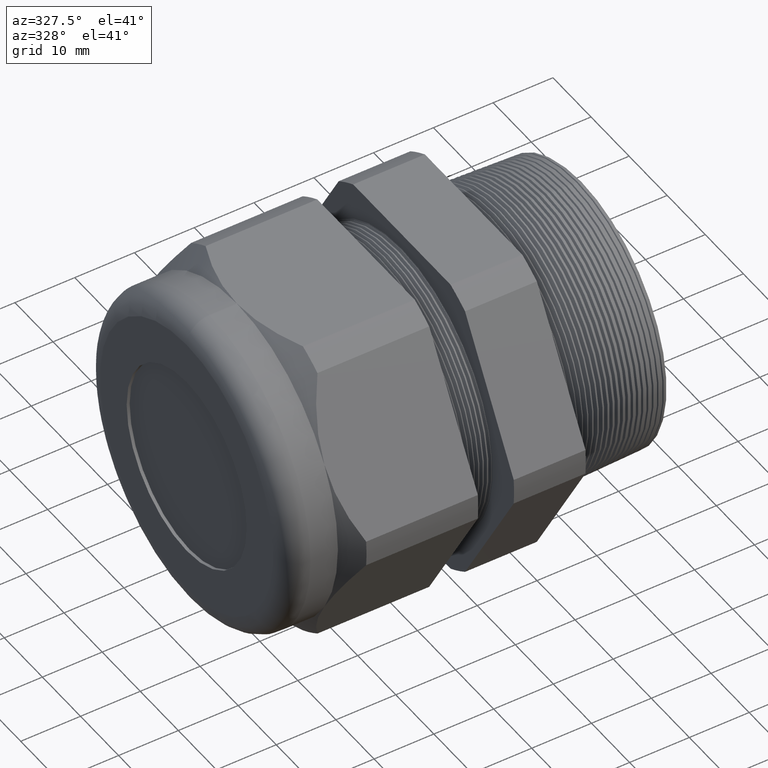
[diagram: clean part render]
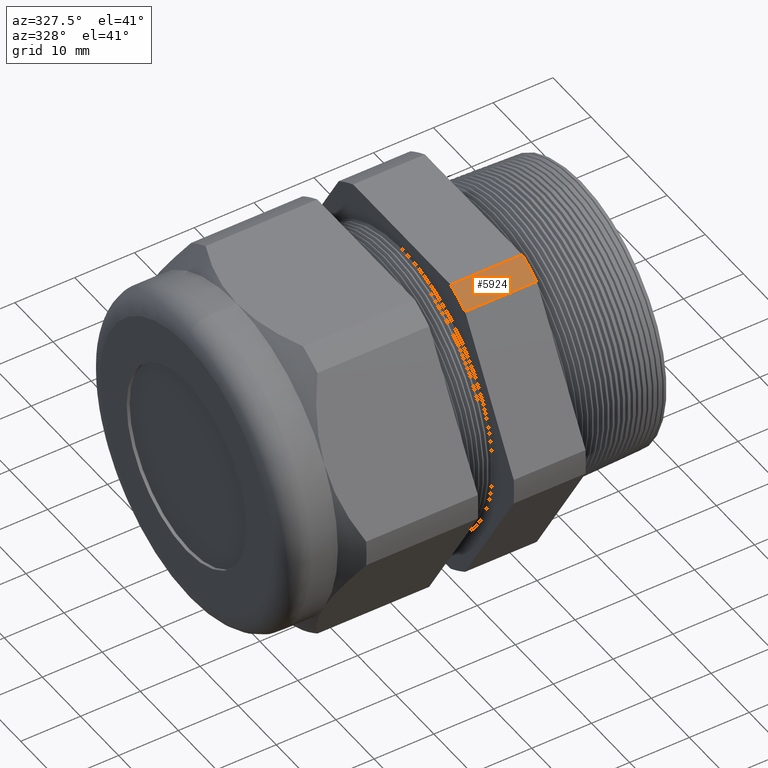
[diagram: same view with one face highlighted and labeled with its STEP entity id]
A machine part, auxiliary view. The second image highlights one B-rep face of the part: STEP entity #5924.
In plain terms, the highlighted cylindrical surface (partial cylindrical patch) has radius 29.4627 mm, axis along (-1, 0, 0).
Its self-contained STEP definition (entity closure, byte-faithful):
#132 = VERTEX_POINT ( 'NONE', #461 ) ;
#134 = EDGE_CURVE ( 'NONE', #132, #135, #460, .T. ) ;
#135 = VERTEX_POINT ( 'NONE', #455 ) ;
#455 = CARTESIAN_POINT ( 'NONE',  ( -0.7824400000000001400, -0.5034471198646400800, 1.044999999999999300 ) ) ;
#456 = DIRECTION ( 'NONE',  ( 0.0000000000000000000, 0.0000000000000000000, 1.000000000000000000 ) ) ;
#457 = DIRECTION ( 'NONE',  ( -1.000000000000000000, 0.0000000000000000000, 0.0000000000000000000 ) ) ;
#458 = CARTESIAN_POINT ( 'NONE',  ( -0.7824400000000001400, 0.0000000000000000000, 0.0000000000000000000 ) ) ;
#459 = AXIS2_PLACEMENT_3D ( 'NONE', #458, #457, #456 ) ;
#460 = CIRCLE ( 'NONE', #459, 1.159950000000000000 ) ;
#461 = CARTESIAN_POINT ( 'NONE',  ( -0.7824400000000001400, -0.6532729870224188700, 0.9584979952648864400 ) ) ;
#1823 = CARTESIAN_POINT ( 'NONE',  ( -0.3100000000000000000, -0.5034471198646400800, 1.044999999999999300 ) ) ;
#1986 = DIRECTION ( 'NONE',  ( 1.000000000000000000, 0.0000000000000000000, 0.0000000000000000000 ) ) ;
#1987 = CARTESIAN_POINT ( 'NONE',  ( -0.3100000000000000000, 0.0000000000000000000, 0.0000000000000000000 ) ) ;
#1988 = AXIS2_PLACEMENT_3D ( 'NONE', #1987, #1986, #2047 ) ;
#1993 = CIRCLE ( 'NONE', #1988, 1.159950000000000000 ) ;
#2047 = DIRECTION ( 'NONE',  ( 0.0000000000000000000, 0.0000000000000000000, -1.000000000000000000 ) ) ;
#3382 = CARTESIAN_POINT ( 'NONE',  ( -0.3100000000000000000, -0.6532729870224188700, 0.9584979952648864400 ) ) ;
#3400 = DIRECTION ( 'NONE',  ( -1.000000000000000000, 0.0000000000000000000, 0.0000000000000000000 ) ) ;
#3401 = VECTOR ( 'NONE', #3400, 39.37007874015748100 ) ;
#3402 = CARTESIAN_POINT ( 'NONE',  ( 0.4000000000000000800, -0.6532729870224188700, 0.9584979952648864400 ) ) ;
#3403 = LINE ( 'NONE', #3402, #3401 ) ;
#3883 = DIRECTION ( 'NONE',  ( -1.000000000000000000, 0.0000000000000000000, 0.0000000000000000000 ) ) ;
#3884 = VECTOR ( 'NONE', #3883, 39.37007874015748100 ) ;
#3885 = CARTESIAN_POINT ( 'NONE',  ( 0.4000000000000000800, -0.5034471198646400800, 1.044999999999999300 ) ) ;
#3886 = DIRECTION ( 'NONE',  ( 0.0000000000000000000, 0.0000000000000000000, 1.000000000000000000 ) ) ;
#3887 = DIRECTION ( 'NONE',  ( -1.000000000000000000, 0.0000000000000000000, 0.0000000000000000000 ) ) ;
#3888 = CARTESIAN_POINT ( 'NONE',  ( 0.4000000000000000800, 0.0000000000000000000, 0.0000000000000000000 ) ) ;
#3889 = AXIS2_PLACEMENT_3D ( 'NONE', #3888, #3887, #3886 ) ;
#3890 = LINE ( 'NONE', #3885, #3884 ) ;
#3891 = CYLINDRICAL_SURFACE ( 'NONE', #3889, 1.159950000000000000 ) ;
#3892 = FACE_OUTER_BOUND ( 'NONE', #5918, .T. ) ;
#4763 = VERTEX_POINT ( 'NONE', #1823 ) ;
#4906 = EDGE_CURVE ( 'NONE', #4763, #5623, #1993, .T. ) ;
#5623 = VERTEX_POINT ( 'NONE', #3382 ) ;
#5645 = ORIENTED_EDGE ( 'NONE', *, *, #5646, .F. ) ;
#5646 = EDGE_CURVE ( 'NONE', #5623, #132, #3403, .T. ) ;
#5648 = ORIENTED_EDGE ( 'NONE', *, *, #4906, .F. ) ;
#5657 = ORIENTED_EDGE ( 'NONE', *, *, #5928, .T. ) ;
#5658 = ORIENTED_EDGE ( 'NONE', *, *, #134, .F. ) ;
#5918 = EDGE_LOOP ( 'NONE', ( #5657, #5658, #5645, #5648 ) ) ;
#5924 = ADVANCED_FACE ( 'NONE', ( #3892 ), #3891, .T. ) ;
#5928 = EDGE_CURVE ( 'NONE', #4763, #135, #3890, .T. ) ;